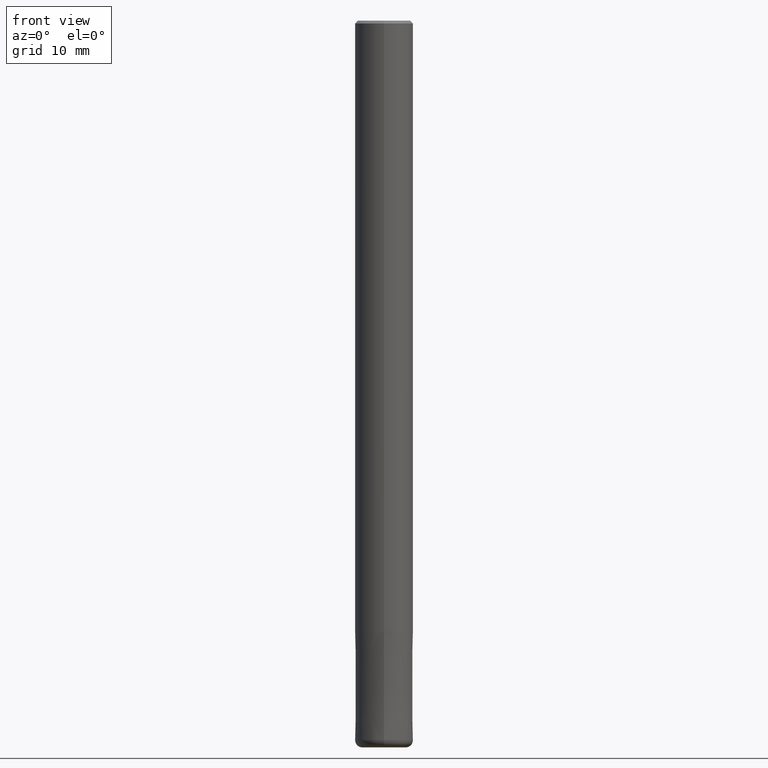
[diagram: clean part render]
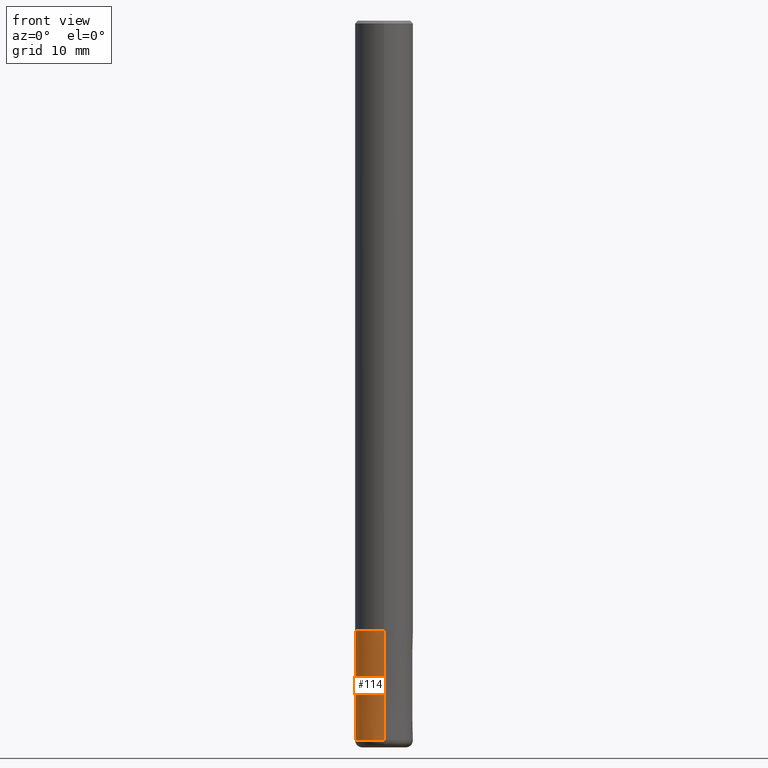
[diagram: same view with one face highlighted and labeled with its STEP entity id]
A machine part, front view. The second image highlights one B-rep face of the part: STEP entity #114.
In plain terms, the highlighted conical surface has half-angle 0 deg.
Its self-contained STEP definition (entity closure, byte-faithful):
#70=EDGE_CURVE('',#154,#142,#174,.T.);
#96=EDGE_CURVE('',#142,#148,#203,.T.);
#98=EDGE_CURVE('',#122,#154,#205,.T.);
#114=ADVANCED_FACE('',(#222),#223,.T.);
#122=VERTEX_POINT('',#233);
#130=EDGE_CURVE('',#122,#148,#241,.T.);
#142=VERTEX_POINT('',#256);
#148=VERTEX_POINT('',#263);
#154=VERTEX_POINT('',#270);
#174=CIRCLE('',#281,3.9999);
#203=LINE('',#319,#320);
#205=LINE('',#323,#324);
#222=FACE_OUTER_BOUND('',#345,.T.);
#223=CONICAL_SURFACE('',#346,3.99995,6.66666666658197E-006);
#233=CARTESIAN_POINT('',(4.89842541528951E-016,-4.0,-99.0));
#241=CIRCLE('',#367,4.0);
#256=CARTESIAN_POINT('',(0.0,3.9999,-84.0));
#263=CARTESIAN_POINT('',(0.0,4.0,-99.0));
#270=CARTESIAN_POINT('',(4.89830295465413E-016,-3.9999,-84.0));
#281=AXIS2_PLACEMENT_3D('',#403,#404,#405);
#319=CARTESIAN_POINT('',(-4.89836418497182E-016,3.99995,-91.5));
#320=VECTOR('',#452,1.0);
#323=CARTESIAN_POINT('',(4.89836418497182E-016,-3.99995,-91.5));
#324=VECTOR('',#453,1.0);
#345=EDGE_LOOP('',(#469,#470,#471,#472));
#346=AXIS2_PLACEMENT_3D('',#473,#474,#475);
#367=AXIS2_PLACEMENT_3D('',#498,#499,#500);
#403=CARTESIAN_POINT('',(0.0,0.0,-84.0));
#404=DIRECTION('',(0.0,0.0,-1.0));
#405=DIRECTION('',(0.0,1.0,0.0));
#452=DIRECTION('',(-8.16404235865165E-022,6.66666666653259E-006,-0.999999999977778));
#453=DIRECTION('',(-8.16404235865165E-022,6.66666666653259E-006,0.999999999977778));
#469=ORIENTED_EDGE('',*,*,#96,.T.);
#470=ORIENTED_EDGE('',*,*,#130,.F.);
#471=ORIENTED_EDGE('',*,*,#98,.T.);
#472=ORIENTED_EDGE('',*,*,#70,.T.);
#473=CARTESIAN_POINT('',(0.0,0.0,-91.5));
#474=DIRECTION('',(0.0,-0.0,-1.0));
#475=DIRECTION('',(0.0,1.0,0.0));
#498=CARTESIAN_POINT('',(0.0,0.0,-99.0));
#499=DIRECTION('',(0.0,0.0,-1.0));
#500=DIRECTION('',(0.0,1.0,0.0));